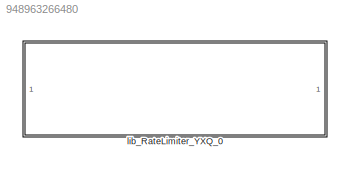
MODEL slx_948963266480
KIND library
CONFIG AbsTol = auto
CONFIG EnableMultiTasking = off
CONFIG FixedStep = auto
CONFIG MaxStep = auto
CONFIG MinStep = auto
CONFIG RelTol = 1e-3
CONFIG SampleTimeConstraint = Unconstrained
CONFIG SolverName = VariableStepAuto
CONFIG StartTime = 0.0
CONFIG StopTime = 10.0
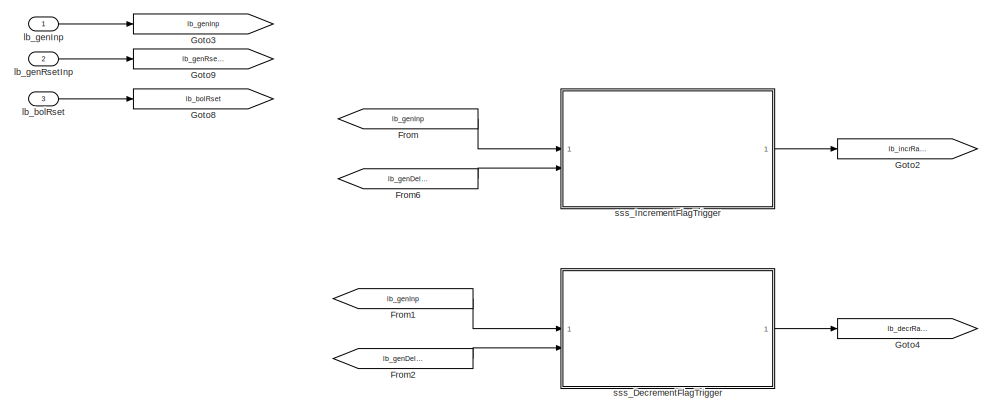
[diagram: lib_RateLimiter_YXQ_0 - part 1/2, top left region]
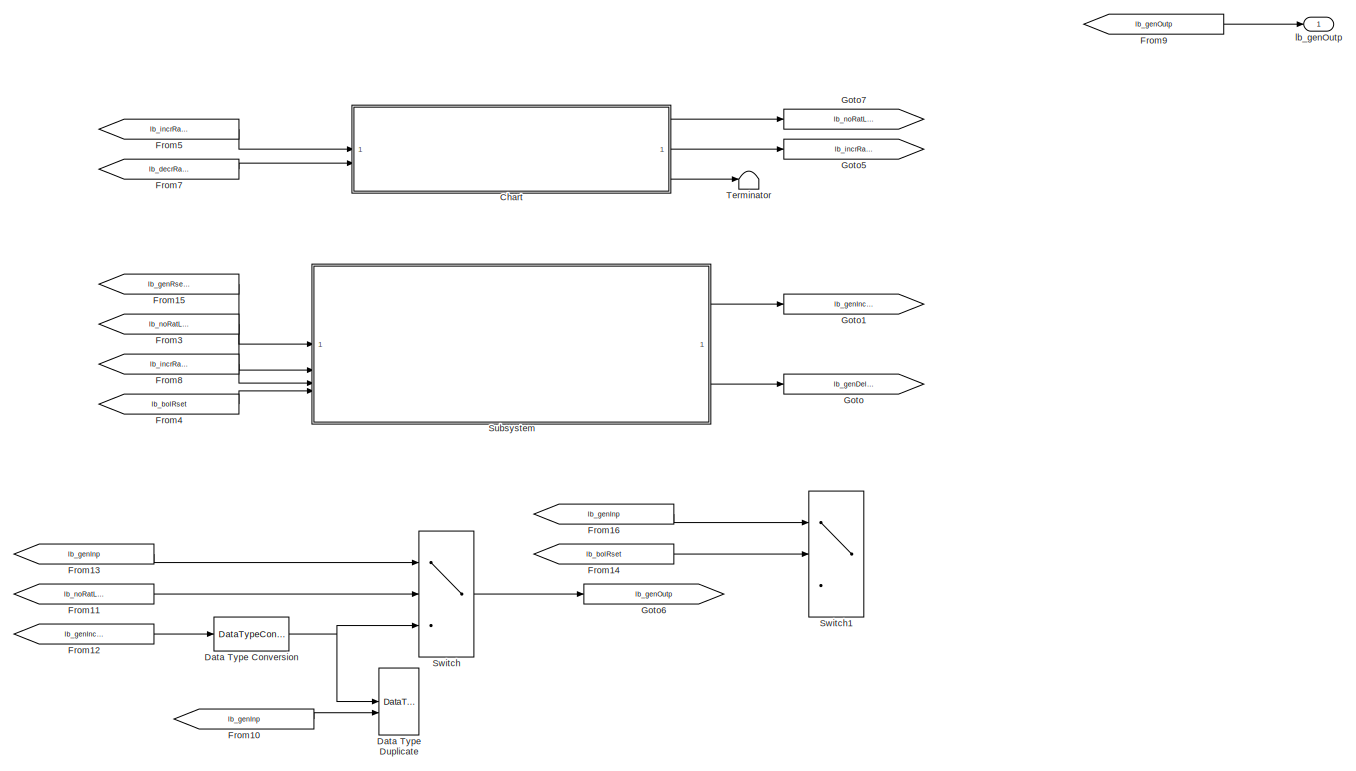
[diagram: lib_RateLimiter_YXQ_0 - part 2/2, right side, full height]
BLOCK [SubSystem] lib_RateLimiter_YXQ_0
  LibrarySourceBlock = lib_rate_limiter/lib_RateLimiter_0
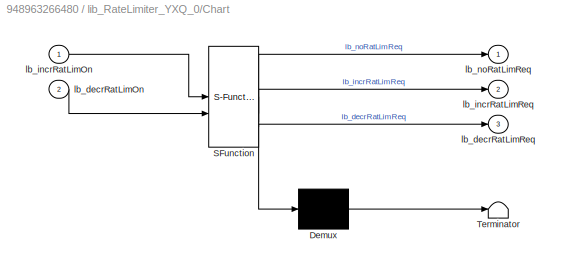
BLOCK [SubSystem] lib_RateLimiter_YXQ_0/Chart
  ErrorFcn = Stateflow.Translate.translate
  PermitHierarchicalResolution = ExplicitOnly
  SFBlockType = Chart
  TreatAsAtomicUnit = on
BLOCK [Demux] lib_RateLimiter_YXQ_0/Chart/ Demux 
  Outputs = 1
BLOCK [S-Function] lib_RateLimiter_YXQ_0/Chart/ SFunction 
  EnableBusSupport = off
  FunctionName = sf_sfun
  PortCounts = [2 4]
  SFcnIsStateOwnerBlock = off
  SFunctionDeploymentMode = off
  Tag = Stateflow S-Function 2
BLOCK [Terminator] lib_RateLimiter_YXQ_0/Chart/ Terminator 
BLOCK [Inport] lib_RateLimiter_YXQ_0/Chart/lb_decrRatLimOn
  Port = 2
BLOCK [Outport] lib_RateLimiter_YXQ_0/Chart/lb_decrRatLimReq
  Port = 3
BLOCK [Inport] lib_RateLimiter_YXQ_0/Chart/lb_incrRatLimOn
BLOCK [Outport] lib_RateLimiter_YXQ_0/Chart/lb_incrRatLimReq
  Port = 2
BLOCK [Outport] lib_RateLimiter_YXQ_0/Chart/lb_noRatLimReq
BLOCK [DataTypeConversion] lib_RateLimiter_YXQ_0/Data Type Conversion
  RndMeth = Floor
  SaturateOnIntegerOverflow = off
BLOCK [DataTypeDuplicate] lib_RateLimiter_YXQ_0/Data Type Duplicate
BLOCK [From] lib_RateLimiter_YXQ_0/From
  GotoTag = lb_genInp
BLOCK [From] lib_RateLimiter_YXQ_0/From1
  GotoTag = lb_genInp
BLOCK [From] lib_RateLimiter_YXQ_0/From10
  GotoTag = lb_genInp
BLOCK [From] lib_RateLimiter_YXQ_0/From11
  GotoTag = lb_noRatLimReq
BLOCK [From] lib_RateLimiter_YXQ_0/From12
  GotoTag = lb_genIncrOutp
BLOCK [From] lib_RateLimiter_YXQ_0/From13
  GotoTag = lb_genInp
BLOCK [From] lib_RateLimiter_YXQ_0/From14
  Commented = on
  GotoTag = lb_bolRset
BLOCK [From] lib_RateLimiter_YXQ_0/From15
  GotoTag = lb_genRsetInp
BLOCK [From] lib_RateLimiter_YXQ_0/From16
  Commented = on
  GotoTag = lb_genInp
BLOCK [From] lib_RateLimiter_YXQ_0/From2
  GotoTag = lb_genDelyOutp
BLOCK [From] lib_RateLimiter_YXQ_0/From3
  GotoTag = lb_noRatLimReq
BLOCK [From] lib_RateLimiter_YXQ_0/From4
  GotoTag = lb_bolRset
BLOCK [From] lib_RateLimiter_YXQ_0/From5
  GotoTag = lb_incrRatLimOn
BLOCK [From] lib_RateLimiter_YXQ_0/From6
  GotoTag = lb_genDelyOutp
BLOCK [From] lib_RateLimiter_YXQ_0/From7
  GotoTag = lb_decrRatLimOn
BLOCK [From] lib_RateLimiter_YXQ_0/From8
  GotoTag = lb_incrRatLimReq
BLOCK [From] lib_RateLimiter_YXQ_0/From9
  GotoTag = lb_genOutp
BLOCK [Goto] lib_RateLimiter_YXQ_0/Goto
  GotoTag = lb_genDelyOutp
BLOCK [Goto] lib_RateLimiter_YXQ_0/Goto1
  GotoTag = lb_genIncrOutp
BLOCK [Goto] lib_RateLimiter_YXQ_0/Goto2
  GotoTag = lb_incrRatLimOn
BLOCK [Goto] lib_RateLimiter_YXQ_0/Goto3
  GotoTag = lb_genInp
BLOCK [Goto] lib_RateLimiter_YXQ_0/Goto4
  GotoTag = lb_decrRatLimOn
BLOCK [Goto] lib_RateLimiter_YXQ_0/Goto5
  GotoTag = lb_incrRatLimReq
BLOCK [Goto] lib_RateLimiter_YXQ_0/Goto6
  GotoTag = lb_genOutp
BLOCK [Goto] lib_RateLimiter_YXQ_0/Goto7
  GotoTag = lb_noRatLimReq
BLOCK [Goto] lib_RateLimiter_YXQ_0/Goto8
  GotoTag = lb_bolRset
BLOCK [Goto] lib_RateLimiter_YXQ_0/Goto9
  GotoTag = lb_genRsetInp
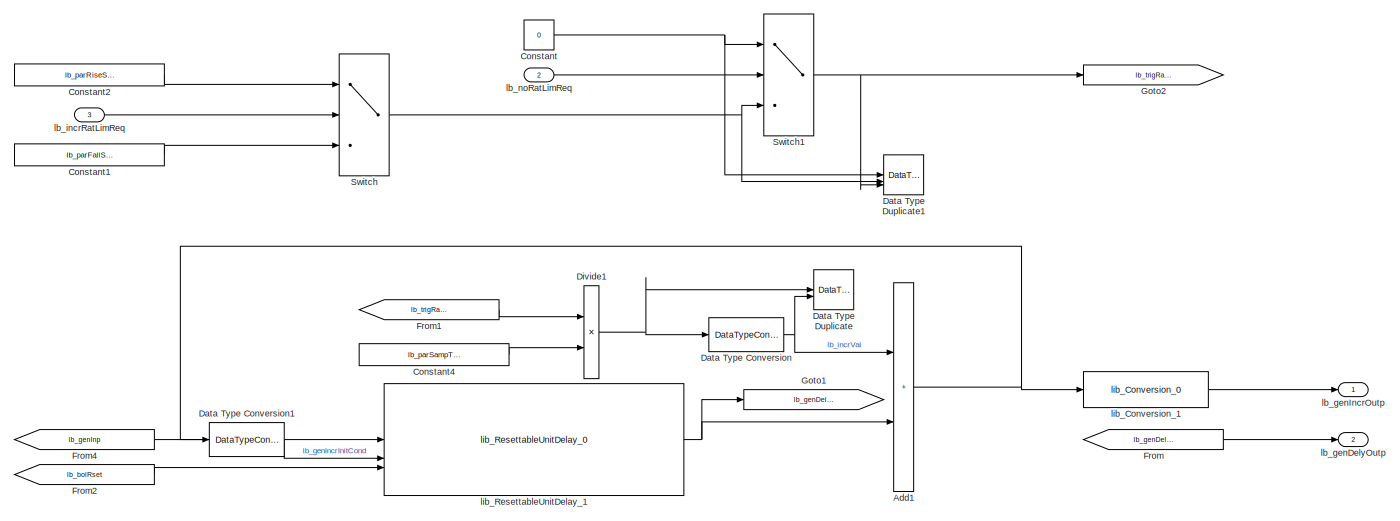
[diagram: lib_RateLimiter_YXQ_0/Subsystem - part 1/2, center side, full height]
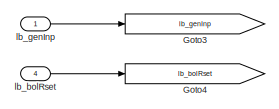
[diagram: lib_RateLimiter_YXQ_0/Subsystem - part 2/2, top left region]
BLOCK [SubSystem] lib_RateLimiter_YXQ_0/Subsystem
BLOCK [Sum] lib_RateLimiter_YXQ_0/Subsystem/Add1
  IconShape = rectangular
  OutDataTypeStr = Inherit: Inherit via back propagation
  RndMeth = Simplest
BLOCK [Constant] lib_RateLimiter_YXQ_0/Subsystem/Constant
  LockScale = on
  OutDataTypeStr = Inherit: Inherit via back propagation
  Value = 0
BLOCK [Constant] lib_RateLimiter_YXQ_0/Subsystem/Constant1
  Value = lb_parFallSlewRate
BLOCK [Constant] lib_RateLimiter_YXQ_0/Subsystem/Constant2
  Value = lb_parRiseSlewRate
BLOCK [Constant] lib_RateLimiter_YXQ_0/Subsystem/Constant4
  Value = lb_parSampTime
BLOCK [DataTypeConversion] lib_RateLimiter_YXQ_0/Subsystem/Data Type Conversion
  OutDataTypeStr = lb_parAccmDataType
  RndMeth = Simplest
  SaturateOnIntegerOverflow = off
BLOCK [DataTypeConversion] lib_RateLimiter_YXQ_0/Subsystem/Data Type Conversion1
  OutDataTypeStr = fixdt(1,32)
  OutMax = lb_parMaxInpVal
  OutMin = lb_parMinInpVal
  RndMeth = Floor
  SaturateOnIntegerOverflow = off
BLOCK [DataTypeDuplicate] lib_RateLimiter_YXQ_0/Subsystem/Data Type Duplicate
BLOCK [DataTypeDuplicate] lib_RateLimiter_YXQ_0/Subsystem/Data Type Duplicate1
  NumInputPorts = 3
BLOCK [Product] lib_RateLimiter_YXQ_0/Subsystem/Divide1
  Inputs = **
  OutDataTypeStr = Inherit: Inherit via back propagation
  RndMeth = Simplest
BLOCK [From] lib_RateLimiter_YXQ_0/Subsystem/From
  GotoTag = lb_genDelyOutp
BLOCK [From] lib_RateLimiter_YXQ_0/Subsystem/From1
  GotoTag = lb_trigRateLim
BLOCK [From] lib_RateLimiter_YXQ_0/Subsystem/From2
  GotoTag = lb_bolRset
BLOCK [From] lib_RateLimiter_YXQ_0/Subsystem/From4
  GotoTag = lb_genInp
BLOCK [Goto] lib_RateLimiter_YXQ_0/Subsystem/Goto1
  GotoTag = lb_genDelyOutp
BLOCK [Goto] lib_RateLimiter_YXQ_0/Subsystem/Goto2
  GotoTag = lb_trigRateLim
BLOCK [Goto] lib_RateLimiter_YXQ_0/Subsystem/Goto3
  GotoTag = lb_genInp
BLOCK [Goto] lib_RateLimiter_YXQ_0/Subsystem/Goto4
  GotoTag = lb_bolRset
BLOCK [Switch] lib_RateLimiter_YXQ_0/Subsystem/Switch
  Criteria = u2 ~= 0
  InputSameDT = off
  SaturateOnIntegerOverflow = off
BLOCK [Switch] lib_RateLimiter_YXQ_0/Subsystem/Switch1
  Criteria = u2 ~= 0
  InputSameDT = off
  OutDataTypeStr = Inherit: Inherit via back propagation
  SaturateOnIntegerOverflow = off
BLOCK [Inport] lib_RateLimiter_YXQ_0/Subsystem/lb_bolRset
  Port = 4
BLOCK [Outport] lib_RateLimiter_YXQ_0/Subsystem/lb_genDelyOutp
  Port = 2
BLOCK [Outport] lib_RateLimiter_YXQ_0/Subsystem/lb_genIncrOutp
BLOCK [Inport] lib_RateLimiter_YXQ_0/Subsystem/lb_genInp
BLOCK [Inport] lib_RateLimiter_YXQ_0/Subsystem/lb_incrRatLimReq
  Port = 3
BLOCK [Inport] lib_RateLimiter_YXQ_0/Subsystem/lb_noRatLimReq
  Port = 2
BLOCK [Reference] lib_RateLimiter_YXQ_0/Subsystem/lib_Conversion_1  REF=lib_conversion/lib_Conversion_0  (lib defined in slx_7f5c0202220d)
  SourceBlock = lib_conversion/lib_Conversion_0
BLOCK [Reference] lib_RateLimiter_YXQ_0/Subsystem/lib_ResettableUnitDelay_1  REF=lib_resettable_unit_delay/lib_ResettableUnitDelay_0  (lib defined in slx_07610dccfeb3)
  SourceBlock = lib_resettable_unit_delay/lib_ResettableUnitDelay_0
BLOCK [Switch] lib_RateLimiter_YXQ_0/Switch
  Criteria = u2 ~= 0
  InputSameDT = off
  SaturateOnIntegerOverflow = off
BLOCK [Switch] lib_RateLimiter_YXQ_0/Switch1
  Commented = on
  Criteria = u2 ~= 0
  InputSameDT = off
  SaturateOnIntegerOverflow = off
BLOCK [Terminator] lib_RateLimiter_YXQ_0/Terminator
BLOCK [Inport] lib_RateLimiter_YXQ_0/lb_bolRset
  Port = 3
BLOCK [Inport] lib_RateLimiter_YXQ_0/lb_genInp
BLOCK [Outport] lib_RateLimiter_YXQ_0/lb_genOutp
BLOCK [Inport] lib_RateLimiter_YXQ_0/lb_genRsetInp
  Port = 2
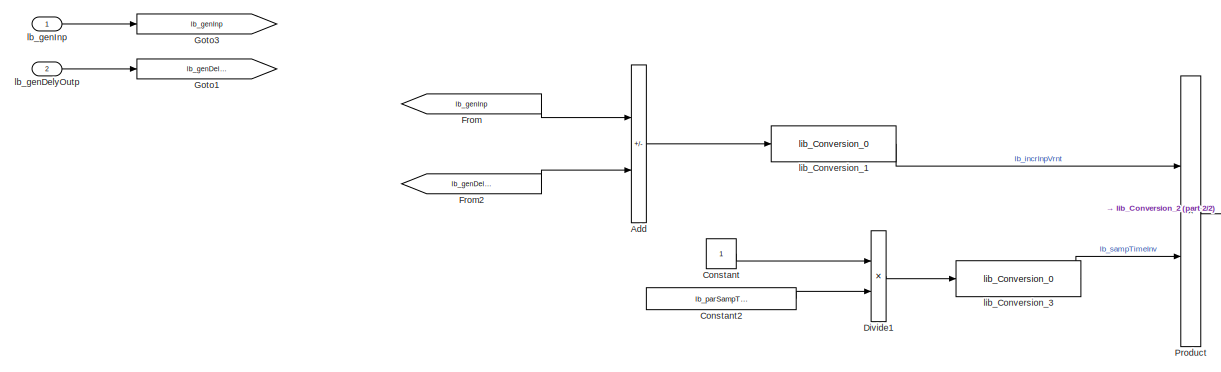
[diagram: lib_RateLimiter_YXQ_0/sss_DecrementFlagTrigger - part 1/2, left side, full height]
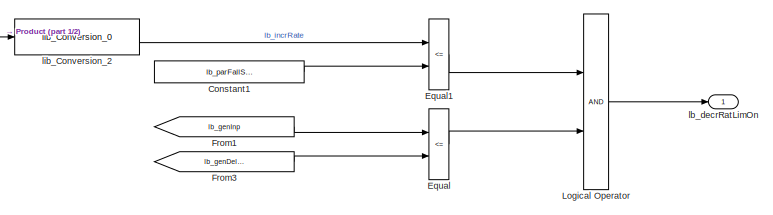
[diagram: lib_RateLimiter_YXQ_0/sss_DecrementFlagTrigger - part 2/2, bottom right region]
BLOCK [SubSystem] lib_RateLimiter_YXQ_0/sss_DecrementFlagTrigger
BLOCK [Sum] lib_RateLimiter_YXQ_0/sss_DecrementFlagTrigger/Add
  IconShape = rectangular
  Inputs = +-
  OutDataTypeStr = Inherit: Inherit via back propagation
  RndMeth = Simplest
BLOCK [Constant] lib_RateLimiter_YXQ_0/sss_DecrementFlagTrigger/Constant
  OutDataTypeStr = uint16
BLOCK [Constant] lib_RateLimiter_YXQ_0/sss_DecrementFlagTrigger/Constant1
  Value = lb_parFallSlewRate
BLOCK [Constant] lib_RateLimiter_YXQ_0/sss_DecrementFlagTrigger/Constant2
  Value = lb_parSampTime
BLOCK [Product] lib_RateLimiter_YXQ_0/sss_DecrementFlagTrigger/Divide1
  Inputs = */
  OutDataTypeStr = Inherit: Inherit via back propagation
  RndMeth = Simplest
BLOCK [RelationalOperator] lib_RateLimiter_YXQ_0/sss_DecrementFlagTrigger/Equal
  InputSameDT = off
  Operator = <=
  OutDataTypeStr = boolean
  RndMeth = Simplest
BLOCK [RelationalOperator] lib_RateLimiter_YXQ_0/sss_DecrementFlagTrigger/Equal1
  InputSameDT = off
  Operator = <=
  OutDataTypeStr = boolean
  RndMeth = Simplest
BLOCK [From] lib_RateLimiter_YXQ_0/sss_DecrementFlagTrigger/From
  GotoTag = lb_genInp
BLOCK [From] lib_RateLimiter_YXQ_0/sss_DecrementFlagTrigger/From1
  GotoTag = lb_genInp
BLOCK [From] lib_RateLimiter_YXQ_0/sss_DecrementFlagTrigger/From2
  GotoTag = lb_genDelyOutp
BLOCK [From] lib_RateLimiter_YXQ_0/sss_DecrementFlagTrigger/From3
  GotoTag = lb_genDelyOutp
BLOCK [Goto] lib_RateLimiter_YXQ_0/sss_DecrementFlagTrigger/Goto1
  GotoTag = lb_genDelyOutp
BLOCK [Goto] lib_RateLimiter_YXQ_0/sss_DecrementFlagTrigger/Goto3
  GotoTag = lb_genInp
BLOCK [Logic] lib_RateLimiter_YXQ_0/sss_DecrementFlagTrigger/Logical Operator
  AllPortsSameDT = off
  OutDataTypeStr = boolean
BLOCK [Product] lib_RateLimiter_YXQ_0/sss_DecrementFlagTrigger/Product
  OutDataTypeStr = Inherit: Inherit via back propagation
BLOCK [Outport] lib_RateLimiter_YXQ_0/sss_DecrementFlagTrigger/lb_decrRatLimOn
BLOCK [Inport] lib_RateLimiter_YXQ_0/sss_DecrementFlagTrigger/lb_genDelyOutp
  Port = 2
BLOCK [Inport] lib_RateLimiter_YXQ_0/sss_DecrementFlagTrigger/lb_genInp
BLOCK [Reference] lib_RateLimiter_YXQ_0/sss_DecrementFlagTrigger/lib_Conversion_1  REF=lib_conversion/lib_Conversion_0  (lib defined in slx_7f5c0202220d)
  SourceBlock = lib_conversion/lib_Conversion_0
BLOCK [Reference] lib_RateLimiter_YXQ_0/sss_DecrementFlagTrigger/lib_Conversion_2  REF=lib_conversion/lib_Conversion_0  (lib defined in slx_7f5c0202220d)
  SourceBlock = lib_conversion/lib_Conversion_0
BLOCK [Reference] lib_RateLimiter_YXQ_0/sss_DecrementFlagTrigger/lib_Conversion_3  REF=lib_conversion/lib_Conversion_0  (lib defined in slx_7f5c0202220d)
  SourceBlock = lib_conversion/lib_Conversion_0
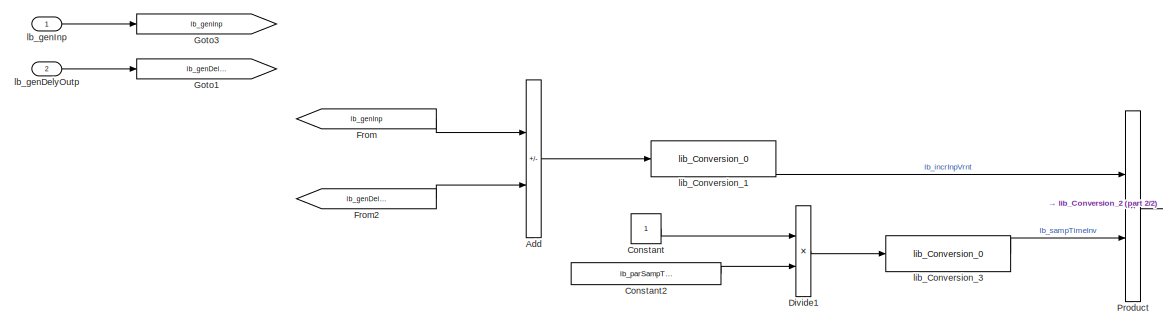
[diagram: lib_RateLimiter_YXQ_0/sss_IncrementFlagTrigger - part 1/2, left side, full height]
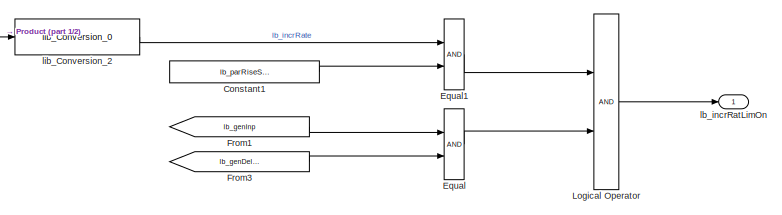
[diagram: lib_RateLimiter_YXQ_0/sss_IncrementFlagTrigger - part 2/2, bottom right region]
BLOCK [SubSystem] lib_RateLimiter_YXQ_0/sss_IncrementFlagTrigger
BLOCK [Sum] lib_RateLimiter_YXQ_0/sss_IncrementFlagTrigger/Add
  IconShape = rectangular
  Inputs = +-
  OutDataTypeStr = Inherit: Inherit via back propagation
  RndMeth = Simplest
BLOCK [Constant] lib_RateLimiter_YXQ_0/sss_IncrementFlagTrigger/Constant
  OutDataTypeStr = uint16
BLOCK [Constant] lib_RateLimiter_YXQ_0/sss_IncrementFlagTrigger/Constant1
  Value = lb_parRiseSlewRate
BLOCK [Constant] lib_RateLimiter_YXQ_0/sss_IncrementFlagTrigger/Constant2
  Value = lb_parSampTime
BLOCK [Product] lib_RateLimiter_YXQ_0/sss_IncrementFlagTrigger/Divide1
  Inputs = */
  OutDataTypeStr = Inherit: Inherit via back propagation
  RndMeth = Simplest
BLOCK [RelationalOperator] lib_RateLimiter_YXQ_0/sss_IncrementFlagTrigger/Equal
  InputSameDT = off
  OutDataTypeStr = boolean
  RndMeth = Simplest
BLOCK [RelationalOperator] lib_RateLimiter_YXQ_0/sss_IncrementFlagTrigger/Equal1
  InputSameDT = off
  OutDataTypeStr = boolean
  RndMeth = Simplest
BLOCK [From] lib_RateLimiter_YXQ_0/sss_IncrementFlagTrigger/From
  GotoTag = lb_genInp
BLOCK [From] lib_RateLimiter_YXQ_0/sss_IncrementFlagTrigger/From1
  GotoTag = lb_genInp
BLOCK [From] lib_RateLimiter_YXQ_0/sss_IncrementFlagTrigger/From2
  GotoTag = lb_genDelyOutp
BLOCK [From] lib_RateLimiter_YXQ_0/sss_IncrementFlagTrigger/From3
  GotoTag = lb_genDelyOutp
BLOCK [Goto] lib_RateLimiter_YXQ_0/sss_IncrementFlagTrigger/Goto1
  GotoTag = lb_genDelyOutp
BLOCK [Goto] lib_RateLimiter_YXQ_0/sss_IncrementFlagTrigger/Goto3
  GotoTag = lb_genInp
BLOCK [Logic] lib_RateLimiter_YXQ_0/sss_IncrementFlagTrigger/Logical Operator
  AllPortsSameDT = off
  OutDataTypeStr = boolean
BLOCK [Product] lib_RateLimiter_YXQ_0/sss_IncrementFlagTrigger/Product
  OutDataTypeStr = Inherit: Inherit via back propagation
BLOCK [Inport] lib_RateLimiter_YXQ_0/sss_IncrementFlagTrigger/lb_genDelyOutp
  Port = 2
BLOCK [Inport] lib_RateLimiter_YXQ_0/sss_IncrementFlagTrigger/lb_genInp
BLOCK [Outport] lib_RateLimiter_YXQ_0/sss_IncrementFlagTrigger/lb_incrRatLimOn
BLOCK [Reference] lib_RateLimiter_YXQ_0/sss_IncrementFlagTrigger/lib_Conversion_1  REF=lib_conversion/lib_Conversion_0  (lib defined in slx_7f5c0202220d)
  SourceBlock = lib_conversion/lib_Conversion_0
BLOCK [Reference] lib_RateLimiter_YXQ_0/sss_IncrementFlagTrigger/lib_Conversion_2  REF=lib_conversion/lib_Conversion_0  (lib defined in slx_7f5c0202220d)
  SourceBlock = lib_conversion/lib_Conversion_0
BLOCK [Reference] lib_RateLimiter_YXQ_0/sss_IncrementFlagTrigger/lib_Conversion_3  REF=lib_conversion/lib_Conversion_0  (lib defined in slx_7f5c0202220d)
  SourceBlock = lib_conversion/lib_Conversion_0
LINE lib_RateLimiter_YXQ_0/Chart:1 -> lib_RateLimiter_YXQ_0/Goto7:1
LINE lib_RateLimiter_YXQ_0/Chart:2 -> lib_RateLimiter_YXQ_0/Goto5:1
LINE lib_RateLimiter_YXQ_0/Chart:3 -> lib_RateLimiter_YXQ_0/Terminator:1
NET lib_RateLimiter_YXQ_0/Data Type Conversion:1 -> lib_RateLimiter_YXQ_0/Data Type Duplicate:1, lib_RateLimiter_YXQ_0/Switch:3
LINE lib_RateLimiter_YXQ_0/From10:1 -> lib_RateLimiter_YXQ_0/Data Type Duplicate:2
LINE lib_RateLimiter_YXQ_0/From11:1 -> lib_RateLimiter_YXQ_0/Switch:2
LINE lib_RateLimiter_YXQ_0/From12:1 -> lib_RateLimiter_YXQ_0/Data Type Conversion:1
LINE lib_RateLimiter_YXQ_0/From13:1 -> lib_RateLimiter_YXQ_0/Switch:1
LINE lib_RateLimiter_YXQ_0/From14:1 -> lib_RateLimiter_YXQ_0/Switch1:2
LINE lib_RateLimiter_YXQ_0/From15:1 -> lib_RateLimiter_YXQ_0/Subsystem:1
LINE lib_RateLimiter_YXQ_0/From16:1 -> lib_RateLimiter_YXQ_0/Switch1:1
LINE lib_RateLimiter_YXQ_0/From1:1 -> lib_RateLimiter_YXQ_0/sss_DecrementFlagTrigger:1
LINE lib_RateLimiter_YXQ_0/From2:1 -> lib_RateLimiter_YXQ_0/sss_DecrementFlagTrigger:2
LINE lib_RateLimiter_YXQ_0/From3:1 -> lib_RateLimiter_YXQ_0/Subsystem:2
LINE lib_RateLimiter_YXQ_0/From4:1 -> lib_RateLimiter_YXQ_0/Subsystem:4
LINE lib_RateLimiter_YXQ_0/From5:1 -> lib_RateLimiter_YXQ_0/Chart:1
LINE lib_RateLimiter_YXQ_0/From6:1 -> lib_RateLimiter_YXQ_0/sss_IncrementFlagTrigger:2
LINE lib_RateLimiter_YXQ_0/From7:1 -> lib_RateLimiter_YXQ_0/Chart:2
LINE lib_RateLimiter_YXQ_0/From8:1 -> lib_RateLimiter_YXQ_0/Subsystem:3
LINE lib_RateLimiter_YXQ_0/From9:1 -> lib_RateLimiter_YXQ_0/lb_genOutp:1
LINE lib_RateLimiter_YXQ_0/From:1 -> lib_RateLimiter_YXQ_0/sss_IncrementFlagTrigger:1
NET lib_RateLimiter_YXQ_0/Subsystem/Add1:1 -> lib_RateLimiter_YXQ_0/Subsystem/lib_Conversion_1:1, lib_RateLimiter_YXQ_0/Subsystem/lib_ResettableUnitDelay_1:1
LINE lib_RateLimiter_YXQ_0/Subsystem/Constant1:1 -> lib_RateLimiter_YXQ_0/Subsystem/Switch:3
LINE lib_RateLimiter_YXQ_0/Subsystem/Constant2:1 -> lib_RateLimiter_YXQ_0/Subsystem/Switch:1
LINE lib_RateLimiter_YXQ_0/Subsystem/Constant4:1 -> lib_RateLimiter_YXQ_0/Subsystem/Divide1:2
NET lib_RateLimiter_YXQ_0/Subsystem/Constant:1 -> lib_RateLimiter_YXQ_0/Subsystem/Data Type Duplicate1:1, lib_RateLimiter_YXQ_0/Subsystem/Switch1:1
LINE lib_RateLimiter_YXQ_0/Subsystem/Data Type Conversion1:1 -> lib_RateLimiter_YXQ_0/Subsystem/lib_ResettableUnitDelay_1:2
NET lib_RateLimiter_YXQ_0/Subsystem/Data Type Conversion:1 -> lib_RateLimiter_YXQ_0/Subsystem/Add1:1, lib_RateLimiter_YXQ_0/Subsystem/Data Type Duplicate:2
NET lib_RateLimiter_YXQ_0/Subsystem/Divide1:1 -> lib_RateLimiter_YXQ_0/Subsystem/Data Type Conversion:1, lib_RateLimiter_YXQ_0/Subsystem/Data Type Duplicate:1
LINE lib_RateLimiter_YXQ_0/Subsystem/From1:1 -> lib_RateLimiter_YXQ_0/Subsystem/Divide1:1
LINE lib_RateLimiter_YXQ_0/Subsystem/From2:1 -> lib_RateLimiter_YXQ_0/Subsystem/lib_ResettableUnitDelay_1:3
LINE lib_RateLimiter_YXQ_0/Subsystem/From4:1 -> lib_RateLimiter_YXQ_0/Subsystem/Data Type Conversion1:1
LINE lib_RateLimiter_YXQ_0/Subsystem/From:1 -> lib_RateLimiter_YXQ_0/Subsystem/lb_genDelyOutp:1
NET lib_RateLimiter_YXQ_0/Subsystem/Switch1:1 -> lib_RateLimiter_YXQ_0/Subsystem/Data Type Duplicate1:3, lib_RateLimiter_YXQ_0/Subsystem/Goto2:1
NET lib_RateLimiter_YXQ_0/Subsystem/Switch:1 -> lib_RateLimiter_YXQ_0/Subsystem/Data Type Duplicate1:2, lib_RateLimiter_YXQ_0/Subsystem/Switch1:3
LINE lib_RateLimiter_YXQ_0/Subsystem/lb_bolRset:1 -> lib_RateLimiter_YXQ_0/Subsystem/Goto4:1
LINE lib_RateLimiter_YXQ_0/Subsystem/lb_genInp:1 -> lib_RateLimiter_YXQ_0/Subsystem/Goto3:1
LINE lib_RateLimiter_YXQ_0/Subsystem/lb_incrRatLimReq:1 -> lib_RateLimiter_YXQ_0/Subsystem/Switch:2
LINE lib_RateLimiter_YXQ_0/Subsystem/lb_noRatLimReq:1 -> lib_RateLimiter_YXQ_0/Subsystem/Switch1:2
LINE lib_RateLimiter_YXQ_0/Subsystem/lib_Conversion_1:1 -> lib_RateLimiter_YXQ_0/Subsystem/lb_genIncrOutp:1
NET lib_RateLimiter_YXQ_0/Subsystem/lib_ResettableUnitDelay_1:1 -> lib_RateLimiter_YXQ_0/Subsystem/Add1:2, lib_RateLimiter_YXQ_0/Subsystem/Goto1:1
LINE lib_RateLimiter_YXQ_0/Subsystem:1 -> lib_RateLimiter_YXQ_0/Goto1:1
LINE lib_RateLimiter_YXQ_0/Subsystem:2 -> lib_RateLimiter_YXQ_0/Goto:1
LINE lib_RateLimiter_YXQ_0/Switch:1 -> lib_RateLimiter_YXQ_0/Goto6:1
LINE lib_RateLimiter_YXQ_0/lb_bolRset:1 -> lib_RateLimiter_YXQ_0/Goto8:1
LINE lib_RateLimiter_YXQ_0/lb_genInp:1 -> lib_RateLimiter_YXQ_0/Goto3:1
LINE lib_RateLimiter_YXQ_0/lb_genRsetInp:1 -> lib_RateLimiter_YXQ_0/Goto9:1
LINE lib_RateLimiter_YXQ_0/sss_DecrementFlagTrigger/Add:1 -> lib_RateLimiter_YXQ_0/sss_DecrementFlagTrigger/lib_Conversion_1:1
LINE lib_RateLimiter_YXQ_0/sss_DecrementFlagTrigger/Constant1:1 -> lib_RateLimiter_YXQ_0/sss_DecrementFlagTrigger/Equal1:2
LINE lib_RateLimiter_YXQ_0/sss_DecrementFlagTrigger/Constant2:1 -> lib_RateLimiter_YXQ_0/sss_DecrementFlagTrigger/Divide1:2
LINE lib_RateLimiter_YXQ_0/sss_DecrementFlagTrigger/Constant:1 -> lib_RateLimiter_YXQ_0/sss_DecrementFlagTrigger/Divide1:1
LINE lib_RateLimiter_YXQ_0/sss_DecrementFlagTrigger/Divide1:1 -> lib_RateLimiter_YXQ_0/sss_DecrementFlagTrigger/lib_Conversion_3:1
LINE lib_RateLimiter_YXQ_0/sss_DecrementFlagTrigger/Equal1:1 -> lib_RateLimiter_YXQ_0/sss_DecrementFlagTrigger/Logical Operator:1
LINE lib_RateLimiter_YXQ_0/sss_DecrementFlagTrigger/Equal:1 -> lib_RateLimiter_YXQ_0/sss_DecrementFlagTrigger/Logical Operator:2
LINE lib_RateLimiter_YXQ_0/sss_DecrementFlagTrigger/From1:1 -> lib_RateLimiter_YXQ_0/sss_DecrementFlagTrigger/Equal:1
LINE lib_RateLimiter_YXQ_0/sss_DecrementFlagTrigger/From2:1 -> lib_RateLimiter_YXQ_0/sss_DecrementFlagTrigger/Add:2
LINE lib_RateLimiter_YXQ_0/sss_DecrementFlagTrigger/From3:1 -> lib_RateLimiter_YXQ_0/sss_DecrementFlagTrigger/Equal:2
LINE lib_RateLimiter_YXQ_0/sss_DecrementFlagTrigger/From:1 -> lib_RateLimiter_YXQ_0/sss_DecrementFlagTrigger/Add:1
LINE lib_RateLimiter_YXQ_0/sss_DecrementFlagTrigger/Logical Operator:1 -> lib_RateLimiter_YXQ_0/sss_DecrementFlagTrigger/lb_decrRatLimOn:1
LINE lib_RateLimiter_YXQ_0/sss_DecrementFlagTrigger/Product:1 -> lib_RateLimiter_YXQ_0/sss_DecrementFlagTrigger/lib_Conversion_2:1
LINE lib_RateLimiter_YXQ_0/sss_DecrementFlagTrigger/lb_genDelyOutp:1 -> lib_RateLimiter_YXQ_0/sss_DecrementFlagTrigger/Goto1:1
LINE lib_RateLimiter_YXQ_0/sss_DecrementFlagTrigger/lb_genInp:1 -> lib_RateLimiter_YXQ_0/sss_DecrementFlagTrigger/Goto3:1
LINE lib_RateLimiter_YXQ_0/sss_DecrementFlagTrigger/lib_Conversion_1:1 -> lib_RateLimiter_YXQ_0/sss_DecrementFlagTrigger/Product:1
LINE lib_RateLimiter_YXQ_0/sss_DecrementFlagTrigger/lib_Conversion_2:1 -> lib_RateLimiter_YXQ_0/sss_DecrementFlagTrigger/Equal1:1
LINE lib_RateLimiter_YXQ_0/sss_DecrementFlagTrigger/lib_Conversion_3:1 -> lib_RateLimiter_YXQ_0/sss_DecrementFlagTrigger/Product:2
LINE lib_RateLimiter_YXQ_0/sss_DecrementFlagTrigger:1 -> lib_RateLimiter_YXQ_0/Goto4:1
LINE lib_RateLimiter_YXQ_0/sss_IncrementFlagTrigger/Add:1 -> lib_RateLimiter_YXQ_0/sss_IncrementFlagTrigger/lib_Conversion_1:1
LINE lib_RateLimiter_YXQ_0/sss_IncrementFlagTrigger/Constant1:1 -> lib_RateLimiter_YXQ_0/sss_IncrementFlagTrigger/Equal1:2
LINE lib_RateLimiter_YXQ_0/sss_IncrementFlagTrigger/Constant2:1 -> lib_RateLimiter_YXQ_0/sss_IncrementFlagTrigger/Divide1:2
LINE lib_RateLimiter_YXQ_0/sss_IncrementFlagTrigger/Constant:1 -> lib_RateLimiter_YXQ_0/sss_IncrementFlagTrigger/Divide1:1
LINE lib_RateLimiter_YXQ_0/sss_IncrementFlagTrigger/Divide1:1 -> lib_RateLimiter_YXQ_0/sss_IncrementFlagTrigger/lib_Conversion_3:1
LINE lib_RateLimiter_YXQ_0/sss_IncrementFlagTrigger/Equal1:1 -> lib_RateLimiter_YXQ_0/sss_IncrementFlagTrigger/Logical Operator:1
LINE lib_RateLimiter_YXQ_0/sss_IncrementFlagTrigger/Equal:1 -> lib_RateLimiter_YXQ_0/sss_IncrementFlagTrigger/Logical Operator:2
LINE lib_RateLimiter_YXQ_0/sss_IncrementFlagTrigger/From1:1 -> lib_RateLimiter_YXQ_0/sss_IncrementFlagTrigger/Equal:1
LINE lib_RateLimiter_YXQ_0/sss_IncrementFlagTrigger/From2:1 -> lib_RateLimiter_YXQ_0/sss_IncrementFlagTrigger/Add:2
LINE lib_RateLimiter_YXQ_0/sss_IncrementFlagTrigger/From3:1 -> lib_RateLimiter_YXQ_0/sss_IncrementFlagTrigger/Equal:2
LINE lib_RateLimiter_YXQ_0/sss_IncrementFlagTrigger/From:1 -> lib_RateLimiter_YXQ_0/sss_IncrementFlagTrigger/Add:1
LINE lib_RateLimiter_YXQ_0/sss_IncrementFlagTrigger/Logical Operator:1 -> lib_RateLimiter_YXQ_0/sss_IncrementFlagTrigger/lb_incrRatLimOn:1
LINE lib_RateLimiter_YXQ_0/sss_IncrementFlagTrigger/Product:1 -> lib_RateLimiter_YXQ_0/sss_IncrementFlagTrigger/lib_Conversion_2:1
LINE lib_RateLimiter_YXQ_0/sss_IncrementFlagTrigger/lb_genDelyOutp:1 -> lib_RateLimiter_YXQ_0/sss_IncrementFlagTrigger/Goto1:1
LINE lib_RateLimiter_YXQ_0/sss_IncrementFlagTrigger/lb_genInp:1 -> lib_RateLimiter_YXQ_0/sss_IncrementFlagTrigger/Goto3:1
LINE lib_RateLimiter_YXQ_0/sss_IncrementFlagTrigger/lib_Conversion_1:1 -> lib_RateLimiter_YXQ_0/sss_IncrementFlagTrigger/Product:1
LINE lib_RateLimiter_YXQ_0/sss_IncrementFlagTrigger/lib_Conversion_2:1 -> lib_RateLimiter_YXQ_0/sss_IncrementFlagTrigger/Equal1:1
LINE lib_RateLimiter_YXQ_0/sss_IncrementFlagTrigger/lib_Conversion_3:1 -> lib_RateLimiter_YXQ_0/sss_IncrementFlagTrigger/Product:2
LINE lib_RateLimiter_YXQ_0/sss_IncrementFlagTrigger:1 -> lib_RateLimiter_YXQ_0/Goto2:1
note: NET lines group one-source signal fan-out (src -> all destinations, sorted); 1:1 wires keep LINE
CHART lib_RateLimiter_YXQ_0/Chart states=0 transitions=11
CHART  states=0 transitions=0
